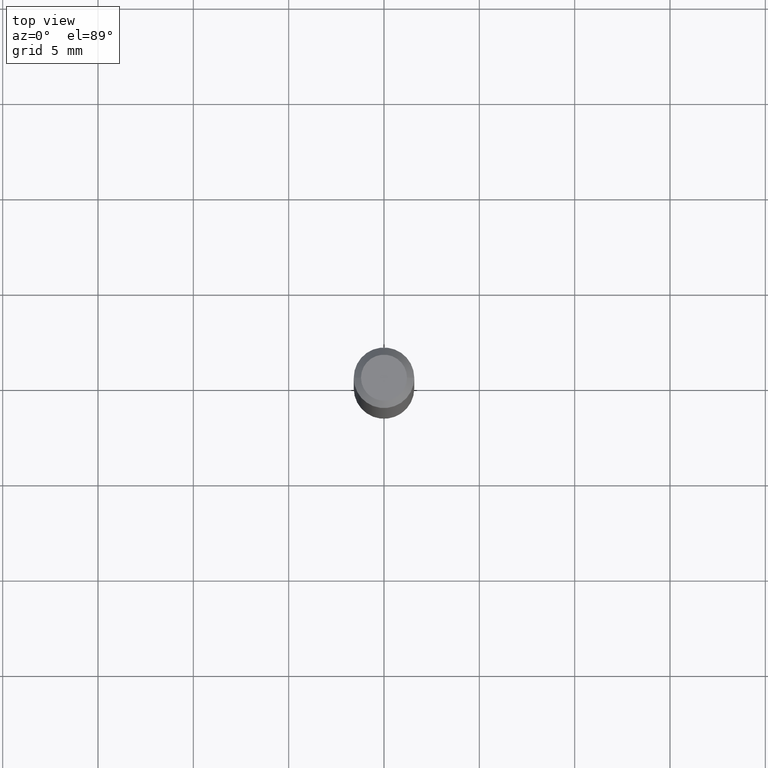
[diagram: clean part render]
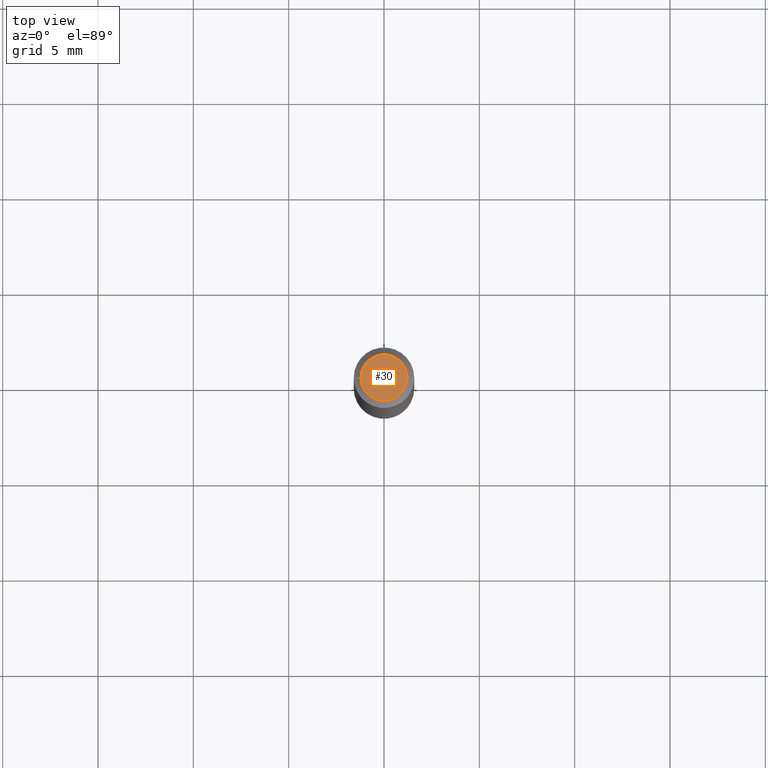
[diagram: same view with one face highlighted and labeled with its STEP entity id]
A machine part, top view. The second image highlights one B-rep face of the part: STEP entity #30.
In plain terms, the highlighted planar face has unit normal (0, -0, -1).
Its self-contained STEP definition (entity closure, byte-faithful):
#8 = DIRECTION ( 'NONE',  ( 2.438088387897960049E-29, -3.491481338843145188E-15, -1.000000000000000000 ) ) ;
#13 = PLANE ( 'NONE',  #105 ) ;
#22 = DIRECTION ( 'NONE',  ( 1.000000000000000000, -6.982962677686266711E-15, 4.852736867747365086E-29 ) ) ;
#30 = ADVANCED_FACE ( 'NONE', ( #65 ), #13, .F. ) ;
#46 = CARTESIAN_POINT ( 'NONE',  ( 3.316907271900976589E-16, 0.04750000000000000749, -2.925296391183627249E-17 ) ) ;
#65 = FACE_OUTER_BOUND ( 'NONE', #150, .T. ) ;
#105 = AXIS2_PLACEMENT_3D ( 'NONE', #46, #8, #247 ) ;
#108 = VERTEX_POINT ( 'NONE', #333 ) ;
#135 = DIRECTION ( 'NONE',  ( -2.445468806185136597E-29, 3.491481338843145583E-15, 1.000000000000000000 ) ) ;
#150 = EDGE_LOOP ( 'NONE', ( #239, #187 ) ) ;
#179 = CARTESIAN_POINT ( 'NONE',  ( -6.680649051745406845E-45, 9.538196290434862081E-31, 2.731847993664263218E-16 ) ) ;
#187 = ORIENTED_EDGE ( 'NONE', *, *, #295, .T. ) ;
#194 = DIRECTION ( 'NONE',  ( 1.000000000000000000, -6.982962677686266711E-15, 4.852736867747365086E-29 ) ) ;
#218 = EDGE_CURVE ( 'NONE', #473, #108, #290, .T. ) ;
#239 = ORIENTED_EDGE ( 'NONE', *, *, #218, .T. ) ;
#247 = DIRECTION ( 'NONE',  ( -1.000000000000000000, 6.982962677686265922E-15, -4.876176775795935793E-29 ) ) ;
#290 = CIRCLE ( 'NONE', #316, 0.04750000000000000749 ) ;
#295 = EDGE_CURVE ( 'NONE', #108, #473, #476, .T. ) ;
#316 = AXIS2_PLACEMENT_3D ( 'NONE', #493, #135, #22 ) ;
#333 = CARTESIAN_POINT ( 'NONE',  ( 0.04750000000000000749, -4.035134999187568762E-16, 2.731847993664288856E-16 ) ) ;
#420 = AXIS2_PLACEMENT_3D ( 'NONE', #179, #474, #194 ) ;
#473 = VERTEX_POINT ( 'NONE', #481 ) ;
#474 = DIRECTION ( 'NONE',  ( -2.445468806185136597E-29, 3.491481338843145583E-15, 1.000000000000000000 ) ) ;
#476 = CIRCLE ( 'NONE', #420, 0.04750000000000000749 ) ;
#481 = CARTESIAN_POINT ( 'NONE',  ( -0.04750000000000000749, 3.578768372314221353E-16, 2.731847993664239060E-16 ) ) ;
#493 = CARTESIAN_POINT ( 'NONE',  ( -6.680649051745406845E-45, 9.538196290434862081E-31, 2.731847993664263218E-16 ) ) ;